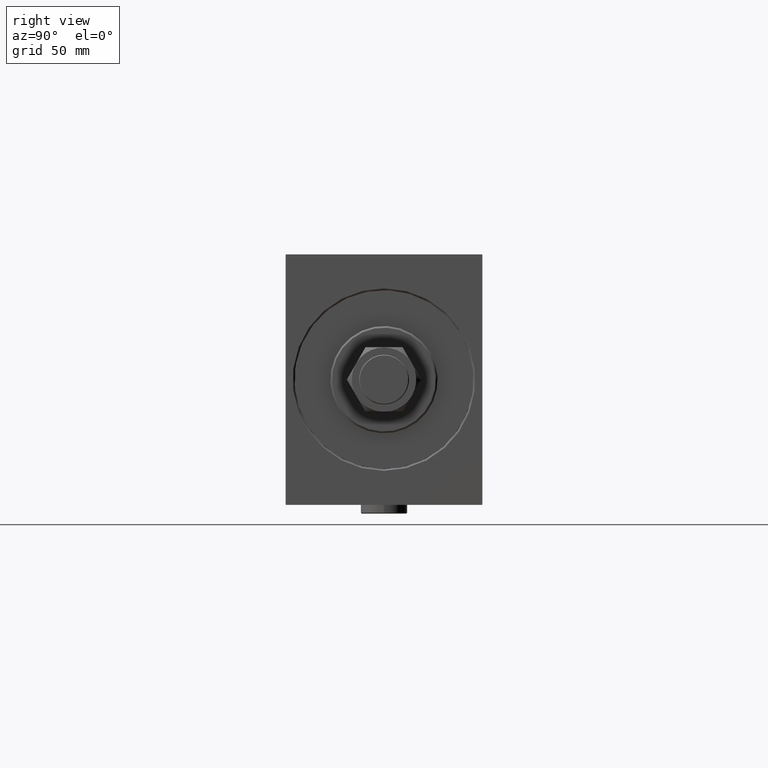
[diagram: clean part render]
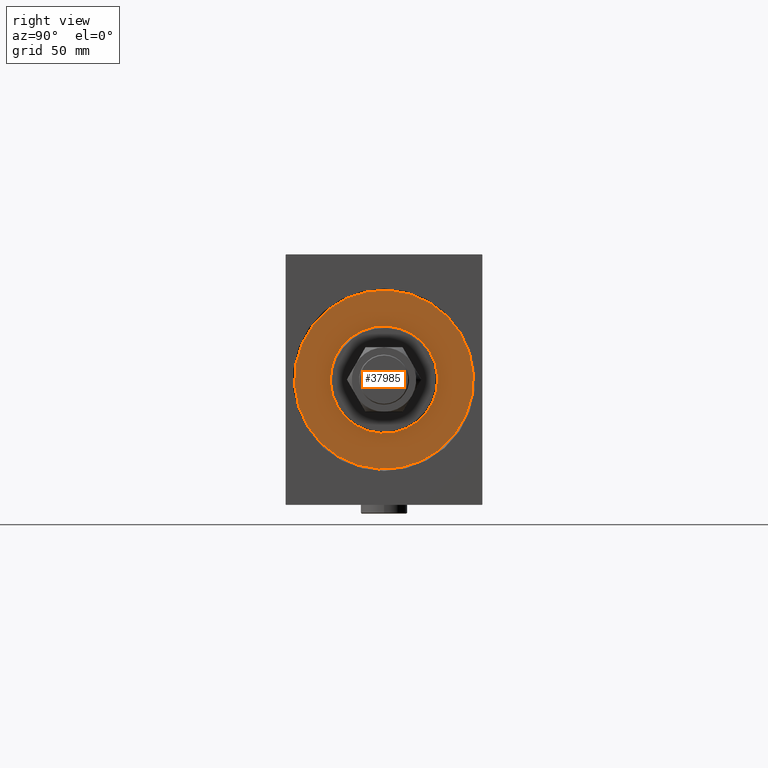
[diagram: same view with one face highlighted and labeled with its STEP entity id]
A machine part, right view. The second image highlights one B-rep face of the part: STEP entity #37985.
In plain terms, the highlighted planar face has unit normal (-1, 0, 0).
Its self-contained STEP definition (entity closure, byte-faithful):
#147 = CARTESIAN_POINT ( 'NONE',  ( 0.000000000000000000, 0.000000000000000000, 0.000000000000000000 ) ) ;
#884 = CIRCLE ( 'NONE', #35110, 50.00000000000000000 ) ;
#1030 = FACE_OUTER_BOUND ( 'NONE', #35558, .T. ) ;
#2069 = VERTEX_POINT ( 'NONE', #45756 ) ;
#3883 = DIRECTION ( 'NONE',  ( 1.000000000000000000, -0.000000000000000000, 0.000000000000000000 ) ) ;
#4761 = DIRECTION ( 'NONE',  ( 0.000000000000000000, 0.000000000000000000, 1.000000000000000000 ) ) ;
#7837 = AXIS2_PLACEMENT_3D ( 'NONE', #147, #3883, #8050 ) ;
#8050 = DIRECTION ( 'NONE',  ( 0.000000000000000000, 0.000000000000000000, -1.000000000000000000 ) ) ;
#10137 = DIRECTION ( 'NONE',  ( 0.000000000000000000, 0.000000000000000000, -1.000000000000000000 ) ) ;
#12306 = AXIS2_PLACEMENT_3D ( 'NONE', #28788, #46024, #10137 ) ;
#13043 = CIRCLE ( 'NONE', #12306, 30.00000000000000000 ) ;
#14338 = AXIS2_PLACEMENT_3D ( 'NONE', #18275, #29458, #4761 ) ;
#15228 = PLANE ( 'NONE',  #14338 ) ;
#15805 = VERTEX_POINT ( 'NONE', #38385 ) ;
#15967 = EDGE_LOOP ( 'NONE', ( #17346, #33003 ) ) ;
#15988 = EDGE_CURVE ( 'NONE', #27987, #27157, #34600, .T. ) ;
#16052 = ORIENTED_EDGE ( 'NONE', *, *, #35991, .F. ) ;
#17346 = ORIENTED_EDGE ( 'NONE', *, *, #15988, .F. ) ;
#17756 = CARTESIAN_POINT ( 'NONE',  ( 0.000000000000000000, 0.000000000000000000, 0.000000000000000000 ) ) ;
#17904 = ORIENTED_EDGE ( 'NONE', *, *, #21170, .F. ) ;
#18275 = CARTESIAN_POINT ( 'NONE',  ( 0.000000000000000000, 0.000000000000000000, 0.000000000000000000 ) ) ;
#19008 = AXIS2_PLACEMENT_3D ( 'NONE', #17756, #45731, #20578 ) ;
#20578 = DIRECTION ( 'NONE',  ( 0.000000000000000000, 0.000000000000000000, 1.000000000000000000 ) ) ;
#20695 = CARTESIAN_POINT ( 'NONE',  ( 0.000000000000000000, 0.000000000000000000, 30.00000000000000000 ) ) ;
#21170 = EDGE_CURVE ( 'NONE', #2069, #15805, #26471, .T. ) ;
#22849 = CARTESIAN_POINT ( 'NONE',  ( 0.000000000000000000, 0.000000000000000000, 0.000000000000000000 ) ) ;
#26471 = CIRCLE ( 'NONE', #19008, 50.00000000000000000 ) ;
#26993 = CARTESIAN_POINT ( 'NONE',  ( 0.000000000000000000, 3.673940397442059178E-15, -30.00000000000000000 ) ) ;
#27157 = VERTEX_POINT ( 'NONE', #26993 ) ;
#27987 = VERTEX_POINT ( 'NONE', #20695 ) ;
#28788 = CARTESIAN_POINT ( 'NONE',  ( 0.000000000000000000, 0.000000000000000000, 0.000000000000000000 ) ) ;
#29153 = DIRECTION ( 'NONE',  ( -1.000000000000000000, 0.000000000000000000, 0.000000000000000000 ) ) ;
#29458 = DIRECTION ( 'NONE',  ( -1.000000000000000000, 0.000000000000000000, 0.000000000000000000 ) ) ;
#32716 = FACE_BOUND ( 'NONE', #15967, .T. ) ;
#33003 = ORIENTED_EDGE ( 'NONE', *, *, #45290, .F. ) ;
#34600 = CIRCLE ( 'NONE', #7837, 30.00000000000000000 ) ;
#35110 = AXIS2_PLACEMENT_3D ( 'NONE', #22849, #29153, #37295 ) ;
#35558 = EDGE_LOOP ( 'NONE', ( #17904, #16052 ) ) ;
#35991 = EDGE_CURVE ( 'NONE', #15805, #2069, #884, .T. ) ;
#37295 = DIRECTION ( 'NONE',  ( 0.000000000000000000, 0.000000000000000000, 1.000000000000000000 ) ) ;
#37985 = ADVANCED_FACE ( 'NONE', ( #32716, #1030 ), #15228, .F. ) ;
#38385 = CARTESIAN_POINT ( 'NONE',  ( 0.000000000000000000, 6.123233995736766085E-15, 50.00000000000000000 ) ) ;
#45290 = EDGE_CURVE ( 'NONE', #27157, #27987, #13043, .T. ) ;
#45731 = DIRECTION ( 'NONE',  ( -1.000000000000000000, 0.000000000000000000, 0.000000000000000000 ) ) ;
#45756 = CARTESIAN_POINT ( 'NONE',  ( 0.000000000000000000, 0.000000000000000000, -50.00000000000000000 ) ) ;
#46024 = DIRECTION ( 'NONE',  ( 1.000000000000000000, -0.000000000000000000, 0.000000000000000000 ) ) ;